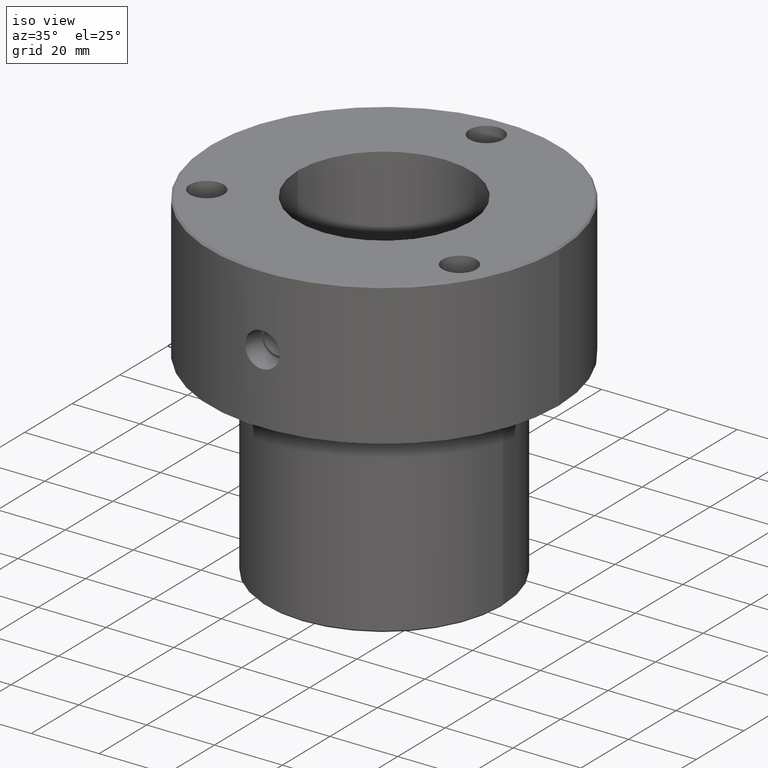
[diagram: clean part render]
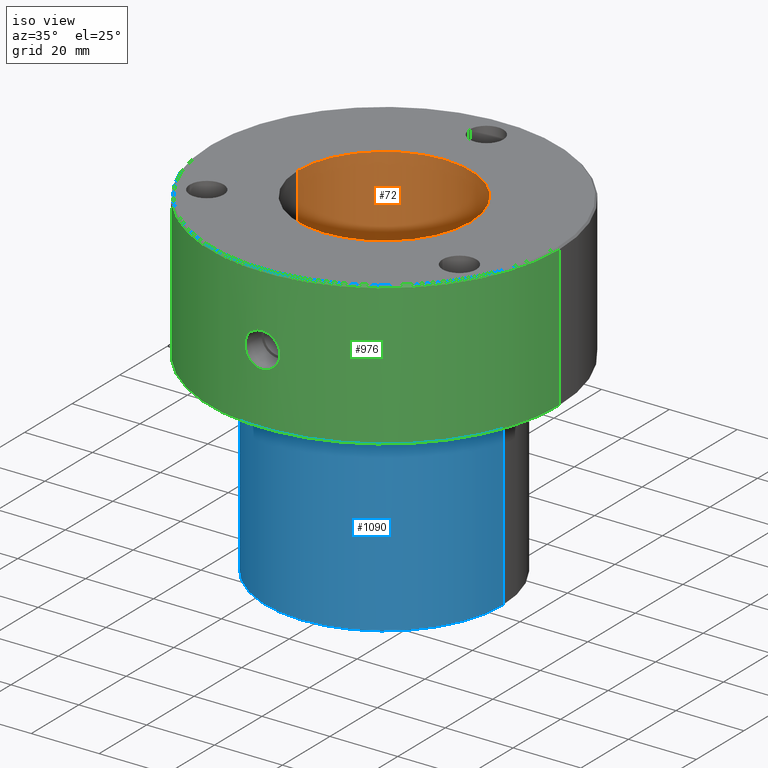
[diagram: same view with three faces highlighted in distinct colors, each labeled with its STEP entity id]
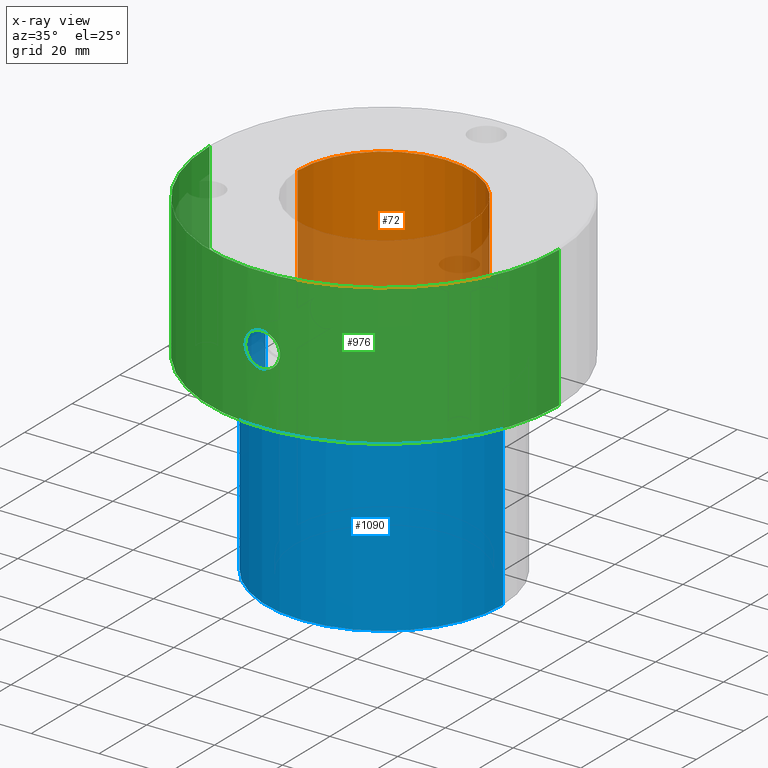
[diagram: x-ray of the same camera — body ghosted, the three highlighted faces saturated]
A machine part, iso view with three faces highlighted in distinct colors.
The next image is the same camera in x-ray (body ghosted, the three faces saturated) — at least one of them is partly hidden behind the body in this view.
Their STEP definitions:

[orange] entity #72 — the highlighted cylindrical surface (partial cylindrical patch) has radius 25.5 mm, axis along (-0, -0, -1).
#72 = ADVANCED_FACE ( 'NONE', ( #130 ), #139, .F. ) ;
#80 = CARTESIAN_POINT ( 'NONE',  ( 25.50000000000000000, 3.122849337825750222E-15, 0.000000000000000000 ) ) ;
#86 = EDGE_CURVE ( 'NONE', #406, #904, #1096, .T. ) ;
#89 = CARTESIAN_POINT ( 'NONE',  ( -25.50000000000000000, 0.000000000000000000, 0.000000000000000000 ) ) ;
#114 = VERTEX_POINT ( 'NONE', #1094 ) ;
#118 = CARTESIAN_POINT ( 'NONE',  ( -25.50000000000000000, 0.000000000000000000, 0.000000000000000000 ) ) ;
#130 = FACE_OUTER_BOUND ( 'NONE', #787, .T. ) ;
#139 = CYLINDRICAL_SURFACE ( 'NONE', #877, 25.50000000000000000 ) ;
#229 = DIRECTION ( 'NONE',  ( -0.000000000000000000, -0.000000000000000000, -1.000000000000000000 ) ) ;
#237 = DIRECTION ( 'NONE',  ( 0.000000000000000000, 0.000000000000000000, -1.000000000000000000 ) ) ;
#293 = DIRECTION ( 'NONE',  ( -0.000000000000000000, -0.000000000000000000, -1.000000000000000000 ) ) ;
#406 = VERTEX_POINT ( 'NONE', #118 ) ;
#448 = AXIS2_PLACEMENT_3D ( 'NONE', #705, #237, #1088 ) ;
#451 = VECTOR ( 'NONE', #293, 1000.000000000000000 ) ;
#490 = AXIS2_PLACEMENT_3D ( 'NONE', #1142, #844, #1031 ) ;
#517 = LINE ( 'NONE', #908, #655 ) ;
#518 = ORIENTED_EDGE ( 'NONE', *, *, #1138, .T. ) ;
#523 = DIRECTION ( 'NONE',  ( -0.000000000000000000, -0.000000000000000000, -1.000000000000000000 ) ) ;
#640 = ORIENTED_EDGE ( 'NONE', *, *, #967, .T. ) ;
#655 = VECTOR ( 'NONE', #523, 1000.000000000000000 ) ;
#659 = EDGE_CURVE ( 'NONE', #904, #689, #517, .T. ) ;
#689 = VERTEX_POINT ( 'NONE', #1029 ) ;
#705 = CARTESIAN_POINT ( 'NONE',  ( 0.000000000000000000, 0.000000000000000000, 0.000000000000000000 ) ) ;
#787 = EDGE_LOOP ( 'NONE', ( #821, #1050, #640, #518 ) ) ;
#821 = ORIENTED_EDGE ( 'NONE', *, *, #659, .F. ) ;
#844 = DIRECTION ( 'NONE',  ( 0.000000000000000000, 0.000000000000000000, -1.000000000000000000 ) ) ;
#877 = AXIS2_PLACEMENT_3D ( 'NONE', #891, #229, #1109 ) ;
#891 = CARTESIAN_POINT ( 'NONE',  ( 0.000000000000000000, 0.000000000000000000, 0.000000000000000000 ) ) ;
#904 = VERTEX_POINT ( 'NONE', #80 ) ;
#908 = CARTESIAN_POINT ( 'NONE',  ( 25.50000000000000000, 3.122849337825750222E-15, 0.000000000000000000 ) ) ;
#961 = CIRCLE ( 'NONE', #490, 25.50000000000000000 ) ;
#962 = LINE ( 'NONE', #89, #451 ) ;
#967 = EDGE_CURVE ( 'NONE', #406, #114, #962, .T. ) ;
#1029 = CARTESIAN_POINT ( 'NONE',  ( 25.50000000000000000, 3.122849337825750222E-15, -95.00000000000000000 ) ) ;
#1031 = DIRECTION ( 'NONE',  ( -1.000000000000000000, 0.000000000000000000, 0.000000000000000000 ) ) ;
#1050 = ORIENTED_EDGE ( 'NONE', *, *, #86, .F. ) ;
#1088 = DIRECTION ( 'NONE',  ( -1.000000000000000000, 0.000000000000000000, 0.000000000000000000 ) ) ;
#1094 = CARTESIAN_POINT ( 'NONE',  ( -25.50000000000000000, 0.000000000000000000, -95.00000000000000000 ) ) ;
#1096 = CIRCLE ( 'NONE', #448, 25.50000000000000000 ) ;
#1109 = DIRECTION ( 'NONE',  ( -1.000000000000000000, 0.000000000000000000, 0.000000000000000000 ) ) ;
#1138 = EDGE_CURVE ( 'NONE', #114, #689, #961, .T. ) ;
#1142 = CARTESIAN_POINT ( 'NONE',  ( 0.000000000000000000, 0.000000000000000000, -95.00000000000000000 ) ) ;

[blue] entity #1090 — the highlighted cylindrical surface (partial cylindrical patch) has radius 35 mm, axis along (-0, -0, 1).
#24 = DIRECTION ( 'NONE',  ( 1.000000000000000000, 0.000000000000000000, 0.000000000000000000 ) ) ;
#36 = CARTESIAN_POINT ( 'NONE',  ( -35.00000000000000000, 4.286263797015736496E-15, 0.000000000000000000 ) ) ;
#113 = EDGE_CURVE ( 'NONE', #1195, #377, #1137, .T. ) ;
#177 = VERTEX_POINT ( 'NONE', #986 ) ;
#180 = EDGE_CURVE ( 'NONE', #177, #1195, #895, .T. ) ;
#221 = AXIS2_PLACEMENT_3D ( 'NONE', #426, #1185, #24 ) ;
#223 = ORIENTED_EDGE ( 'NONE', *, *, #767, .T. ) ;
#377 = VERTEX_POINT ( 'NONE', #1084 ) ;
#403 = DIRECTION ( 'NONE',  ( -0.000000000000000000, -0.000000000000000000, 1.000000000000000000 ) ) ;
#426 = CARTESIAN_POINT ( 'NONE',  ( 0.000000000000000000, 0.000000000000000000, -42.00000000000000000 ) ) ;
#435 = CARTESIAN_POINT ( 'NONE',  ( 35.00000000000000000, 0.000000000000000000, -99.50000000000004263 ) ) ;
#443 = CARTESIAN_POINT ( 'NONE',  ( 0.000000000000000000, 0.000000000000000000, 0.000000000000000000 ) ) ;
#464 = AXIS2_PLACEMENT_3D ( 'NONE', #803, #403, #703 ) ;
#485 = VECTOR ( 'NONE', #804, 1000.000000000000000 ) ;
#548 = FACE_OUTER_BOUND ( 'NONE', #896, .T. ) ;
#584 = CARTESIAN_POINT ( 'NONE',  ( 35.00000000000000000, 0.000000000000000000, 0.000000000000000000 ) ) ;
#592 = CIRCLE ( 'NONE', #464, 35.00000000000000000 ) ;
#683 = VERTEX_POINT ( 'NONE', #435 ) ;
#703 = DIRECTION ( 'NONE',  ( -1.000000000000000000, 0.000000000000000000, 0.000000000000000000 ) ) ;
#747 = CARTESIAN_POINT ( 'NONE',  ( -35.00000000000000000, 4.286263797015736496E-15, -42.00000000000000000 ) ) ;
#767 = EDGE_CURVE ( 'NONE', #177, #683, #592, .T. ) ;
#773 = ORIENTED_EDGE ( 'NONE', *, *, #180, .F. ) ;
#779 = LINE ( 'NONE', #584, #1161 ) ;
#803 = CARTESIAN_POINT ( 'NONE',  ( 0.000000000000000000, 0.000000000000000000, -99.50000000000004263 ) ) ;
#804 = DIRECTION ( 'NONE',  ( -0.000000000000000000, -0.000000000000000000, 1.000000000000000000 ) ) ;
#837 = DIRECTION ( 'NONE',  ( -0.000000000000000000, -0.000000000000000000, 1.000000000000000000 ) ) ;
#846 = DIRECTION ( 'NONE',  ( 1.000000000000000000, 0.000000000000000000, 0.000000000000000000 ) ) ;
#867 = ORIENTED_EDGE ( 'NONE', *, *, #1230, .T. ) ;
#895 = LINE ( 'NONE', #36, #485 ) ;
#896 = EDGE_LOOP ( 'NONE', ( #773, #223, #867, #910 ) ) ;
#910 = ORIENTED_EDGE ( 'NONE', *, *, #113, .F. ) ;
#936 = CYLINDRICAL_SURFACE ( 'NONE', #947, 35.00000000000000000 ) ;
#947 = AXIS2_PLACEMENT_3D ( 'NONE', #443, #837, #846 ) ;
#986 = CARTESIAN_POINT ( 'NONE',  ( -35.00000000000000000, 4.286263797015736496E-15, -99.50000000000004263 ) ) ;
#1084 = CARTESIAN_POINT ( 'NONE',  ( 35.00000000000000000, 0.000000000000000000, -42.00000000000000000 ) ) ;
#1090 = ADVANCED_FACE ( 'NONE', ( #548 ), #936, .T. ) ;
#1137 = CIRCLE ( 'NONE', #221, 35.00000000000000000 ) ;
#1160 = DIRECTION ( 'NONE',  ( -0.000000000000000000, -0.000000000000000000, 1.000000000000000000 ) ) ;
#1161 = VECTOR ( 'NONE', #1160, 1000.000000000000000 ) ;
#1185 = DIRECTION ( 'NONE',  ( -0.000000000000000000, -0.000000000000000000, 1.000000000000000000 ) ) ;
#1195 = VERTEX_POINT ( 'NONE', #747 ) ;
#1230 = EDGE_CURVE ( 'NONE', #683, #377, #779, .T. ) ;

[green] entity #976 — the highlighted cylindrical surface (partial cylindrical patch) has radius 51.5 mm, axis along (-0, -0, 1).
#12 = VECTOR ( 'NONE', #658, 1000.000000000000000 ) ;
#17 = CARTESIAN_POINT ( 'NONE',  ( 4.457634637478083306, -51.30705923410508262, -23.82621273787369631 ) ) ;
#20 = CARTESIAN_POINT ( 'NONE',  ( 51.50000000000000000, 0.000000000000000000, -0.5000000000000004441 ) ) ;
#23 = CARTESIAN_POINT ( 'NONE',  ( 51.50000000000000000, 0.000000000000000000, -42.00000000000000000 ) ) ;
#45 = CARTESIAN_POINT ( 'NONE',  ( 2.716055077494536008, -51.42852049064780573, -25.61849436601665531 ) ) ;
#50 = CARTESIAN_POINT ( 'NONE',  ( -4.970545045048587518, -51.25961420767220744, -19.91315521511948816 ) ) ;
#51 = CARTESIAN_POINT ( 'NONE',  ( 2.121122820814869137, -51.45653307363946993, -25.93719350975683113 ) ) ;
#55 = CARTESIAN_POINT ( 'NONE',  ( -5.103538412688853221, -51.24654388850566988, -21.91707525582282656 ) ) ;
#59 = EDGE_CURVE ( 'NONE', #1106, #300, #383, .T. ) ;
#65 = CARTESIAN_POINT ( 'NONE',  ( -2.572853543023277734, -51.43590637866683579, -16.79541911679499222 ) ) ;
#69 = B_SPLINE_CURVE_WITH_KNOTS ( 'NONE', 3,
 ( #331, #133, #792, #1173, #440, #51, #241, #818, #45, #298, #519, #1111, #1070, #17, #1213, #397, #1010, #342, #1169, #430, #1200, #629, #1098, #1018, #827, #200, #1208, #1117, #146, #591, #137, #537, #932, #831, #788, #228, #617, #726, #983, #739 ),
 .UNSPECIFIED., .F., .F.,
 ( 4, 2, 2, 2, 2, 2, 2, 2, 2, 2, 2, 2, 2, 2, 2, 2, 2, 2, 2, 4 ),
 ( 0.004107745889543262287, 0.005112902197702762913, 0.006118058505862263539, 0.006620636659942015154, 0.007123214814021767635, 0.008128371122181272598, 0.009133527430340777561, 0.01013868373850028252, 0.01064126189258003501, 0.01114384004665978575, 0.01214899635481930112, 0.01315415266297881650, 0.01415930897113833187, 0.01516446527929784724, 0.01616962158745736261, 0.01717477789561687798, 0.01817993420377638988, 0.01868251235785614930, 0.01918509051193590526, 0.02019024682009542063 ),
 .UNSPECIFIED. ) ;
#73 = DIRECTION ( 'NONE',  ( 0.000000000000000000, 0.000000000000000000, -1.000000000000000000 ) ) ;
#74 = DIRECTION ( 'NONE',  ( 1.000000000000000000, 0.000000000000000000, 0.000000000000000000 ) ) ;
#101 = CYLINDRICAL_SURFACE ( 'NONE', #1122, 51.50000000000000000 ) ;
#121 = CARTESIAN_POINT ( 'NONE',  ( -51.50000000000000000, 6.306931015608868807E-15, -42.00000000000000000 ) ) ;
#133 = CARTESIAN_POINT ( 'NONE',  ( 0.3353013208440320803, -51.50000000000000000, -26.39337300000000042 ) ) ;
#136 = CARTESIAN_POINT ( 'NONE',  ( -4.873419098527694615, -51.26905909255087579, -19.59290484552858302 ) ) ;
#137 = CARTESIAN_POINT ( 'NONE',  ( 3.136185333612287351, -51.40519293067121254, -17.16291568919610100 ) ) ;
#145 = CARTESIAN_POINT ( 'NONE',  ( -5.135571099062696376, -51.24330111829166157, -20.91314367667845531 ) ) ;
#146 = CARTESIAN_POINT ( 'NONE',  ( 3.868090047908823159, -51.35507909105496793, -17.85004502327221942 ) ) ;
#150 = CARTESIAN_POINT ( 'NONE',  ( -4.618922364095463529, -51.29261140151269416, -23.52332559415824065 ) ) ;
#154 = CARTESIAN_POINT ( 'NONE',  ( -1.334511350930534856, -51.48375855101124898, -16.27195165724317860 ) ) ;
#158 = CARTESIAN_POINT ( 'NONE',  ( -0.6764116674713784860, -51.49660942567671640, -16.14037076350564703 ) ) ;
#171 = VERTEX_POINT ( 'NONE', #121 ) ;
#200 = CARTESIAN_POINT ( 'NONE',  ( 4.615444507740382285, -51.29292706423705539, -18.96935145740248529 ) ) ;
#222 = CARTESIAN_POINT ( 'NONE',  ( -0.6752129084959268557, -51.49663065334000578, -26.35984570715628550 ) ) ;
#228 = CARTESIAN_POINT ( 'NONE',  ( 1.331544956519863598, -51.48303611421331993, -16.27964254438147762 ) ) ;
#231 = VERTEX_POINT ( 'NONE', #351 ) ;
#240 = CARTESIAN_POINT ( 'NONE',  ( -3.394174496679403408, -51.38858751863610053, -17.37521538122372178 ) ) ;
#241 = CARTESIAN_POINT ( 'NONE',  ( 2.272775390774277149, -51.45004000926935106, -25.86538700450402928 ) ) ;
#250 = CARTESIAN_POINT ( 'NONE',  ( -3.870388291433632499, -51.35491700579432006, -24.64766394908491520 ) ) ;
#252 = ORIENTED_EDGE ( 'NONE', *, *, #920, .T. ) ;
#261 = LINE ( 'NONE', #1060, #12 ) ;
#280 = EDGE_LOOP ( 'NONE', ( #599, #333, #252, #688 ) ) ;
#298 = CARTESIAN_POINT ( 'NONE',  ( 3.136210703289033397, -51.40518342140642005, -25.33692630218639508 ) ) ;
#300 = VERTEX_POINT ( 'NONE', #707 ) ;
#325 = CARTESIAN_POINT ( 'NONE',  ( -1.335029987352562175, -51.48375060202188536, -26.22796783234396045 ) ) ;
#331 = CARTESIAN_POINT ( 'NONE',  ( 1.048222593639576067E-21, -51.50000000000000000, -26.39337300000000042 ) ) ;
#333 = ORIENTED_EDGE ( 'NONE', *, *, #856, .T. ) ;
#335 = CARTESIAN_POINT ( 'NONE',  ( -3.392389233153937589, -51.38870597212261515, -25.12635399936055691 ) ) ;
#337 = CARTESIAN_POINT ( 'NONE',  ( -4.455594510083999538, -51.30723595572462870, -18.67032462210925203 ) ) ;
#342 = CARTESIAN_POINT ( 'NONE',  ( 4.963928581033117737, -51.26023617090775986, -22.57976408175084515 ) ) ;
#351 = CARTESIAN_POINT ( 'NONE',  ( -51.50000000000000000, 6.306931015608868807E-15, -0.5000000000000004441 ) ) ;
#364 = AXIS2_PLACEMENT_3D ( 'NONE', #369, #73, #557 ) ;
#369 = CARTESIAN_POINT ( 'NONE',  ( 0.000000000000000000, 0.000000000000000000, -0.5000000000000004441 ) ) ;
#383 = B_SPLINE_CURVE_WITH_KNOTS ( 'NONE', 3,
 ( #826, #1126, #158, #154, #1207, #836, #941, #65, #1227, #921, #240, #1017, #1026, #337, #748, #136, #50, #731, #145, #536, #55, #1212, #439, #150, #935, #746, #250, #335, #1103, #729, #1014, #709, #325, #222, #815, #1205 ),
 .UNSPECIFIED., .F., .F.,
 ( 4, 2, 2, 2, 2, 2, 2, 2, 2, 2, 2, 2, 2, 2, 2, 2, 2, 4 ),
 ( 0.02019024682009542063, 0.02119471988690419320, 0.02219919295371296925, 0.02270142948711735553, 0.02320366602052174529, 0.02420813908733053174, 0.02521261215413931472, 0.02621708522094810118, 0.02722155828775688763, 0.02822603135456567408, 0.02923050442137446053, 0.03023497748818324699, 0.03123945055499203344, 0.03224392362180081989, 0.03324839668860960634, 0.03425286975541839279, 0.03525734282222717925, 0.03626181588903596570 ),
 .UNSPECIFIED. ) ;
#397 = CARTESIAN_POINT ( 'NONE',  ( 4.809111397820574396, -51.27500999554197136, -23.06273107317452187 ) ) ;
#430 = CARTESIAN_POINT ( 'NONE',  ( 5.102355235093170904, -51.24666100736852314, -21.92415948591494868 ) ) ;
#436 = CIRCLE ( 'NONE', #364, 51.50000000000000000 ) ;
#439 = CARTESIAN_POINT ( 'NONE',  ( -4.874176289879716961, -51.26898510490826055, -22.90456670123846195 ) ) ;
#440 = CARTESIAN_POINT ( 'NONE',  ( 1.657110490166086914, -51.47426363476713362, -26.12980794330655954 ) ) ;
#473 = CARTESIAN_POINT ( 'NONE',  ( 0.000000000000000000, 0.000000000000000000, -42.00000000000000000 ) ) ;
#519 = CARTESIAN_POINT ( 'NONE',  ( 3.394642827361414206, -51.38854838561958616, -25.12414554227154539 ) ) ;
#532 = VERTEX_POINT ( 'NONE', #20 ) ;
#536 = CARTESIAN_POINT ( 'NONE',  ( -5.135801780001337136, -51.24327799907001690, -21.58331015971613454 ) ) ;
#537 = CARTESIAN_POINT ( 'NONE',  ( 2.573071245024807219, -51.43645422318999039, -16.78582650585409297 ) ) ;
#557 = DIRECTION ( 'NONE',  ( 1.000000000000000000, 0.000000000000000000, 0.000000000000000000 ) ) ;
#585 = FACE_BOUND ( 'NONE', #777, .T. ) ;
#591 = CARTESIAN_POINT ( 'NONE',  ( 3.394848946332763351, -51.38853247271054414, -17.37609873495068413 ) ) ;
#599 = ORIENTED_EDGE ( 'NONE', *, *, #636, .F. ) ;
#617 = CARTESIAN_POINT ( 'NONE',  ( 1.166101079403363050, -51.48706274633448032, -16.23811354126406670 ) ) ;
#629 = CARTESIAN_POINT ( 'NONE',  ( 5.135613818990137247, -51.24329683683077263, -20.90997058817930210 ) ) ;
#636 = EDGE_CURVE ( 'NONE', #171, #231, #1191, .T. ) ;
#638 = DIRECTION ( 'NONE',  ( 1.000000000000000000, 0.000000000000000000, 0.000000000000000000 ) ) ;
#658 = DIRECTION ( 'NONE',  ( -0.000000000000000000, -0.000000000000000000, 1.000000000000000000 ) ) ;
#688 = ORIENTED_EDGE ( 'NONE', *, *, #1162, .T. ) ;
#696 = ORIENTED_EDGE ( 'NONE', *, *, #1016, .F. ) ;
#707 = CARTESIAN_POINT ( 'NONE',  ( 1.048222593639576067E-21, -51.50000000000000000, -26.39337300000000042 ) ) ;
#709 = CARTESIAN_POINT ( 'NONE',  ( -1.655189781649638592, -51.47433215661397554, -26.13054333015325170 ) ) ;
#726 = CARTESIAN_POINT ( 'NONE',  ( 0.6694074120081875412, -51.49671427971136950, -16.13930995566505899 ) ) ;
#729 = CARTESIAN_POINT ( 'NONE',  ( -2.577214110619729048, -51.43622827599907055, -25.71146961298348899 ) ) ;
#731 = CARTESIAN_POINT ( 'NONE',  ( -5.102074559861904390, -51.24668966821032967, -20.57299764770509398 ) ) ;
#732 = CARTESIAN_POINT ( 'NONE',  ( 0.000000000000000000, 0.000000000000000000, 0.000000000000000000 ) ) ;
#739 = CARTESIAN_POINT ( 'NONE',  ( 6.298815310959837949E-16, -51.50000000000000000, -16.10662700000000314 ) ) ;
#746 = CARTESIAN_POINT ( 'NONE',  ( -4.084952459583112372, -51.33808047330343527, -24.38557191876200392 ) ) ;
#748 = CARTESIAN_POINT ( 'NONE',  ( -4.616570975055003245, -51.29282509647570976, -18.97167582135471875 ) ) ;
#763 = VERTEX_POINT ( 'NONE', #23 ) ;
#766 = DIRECTION ( 'NONE',  ( -0.000000000000000000, -0.000000000000000000, 1.000000000000000000 ) ) ;
#777 = EDGE_LOOP ( 'NONE', ( #696, #992 ) ) ;
#788 = CARTESIAN_POINT ( 'NONE',  ( 1.654020674870432028, -51.47368487990468111, -16.37775195547085971 ) ) ;
#792 = CARTESIAN_POINT ( 'NONE',  ( 0.6693026806619063462, -51.49672549019852141, -26.36080848415118894 ) ) ;
#796 = CARTESIAN_POINT ( 'NONE',  ( -51.50000000000000000, 6.306931015608868807E-15, 0.000000000000000000 ) ) ;
#799 = AXIS2_PLACEMENT_3D ( 'NONE', #473, #766, #74 ) ;
#815 = CARTESIAN_POINT ( 'NONE',  ( -0.3350734043244900651, -51.50000000000000000, -26.39337299999999331 ) ) ;
#818 = CARTESIAN_POINT ( 'NONE',  ( 2.569935440570200846, -51.43605308306254642, -25.70627989238121103 ) ) ;
#826 = CARTESIAN_POINT ( 'NONE',  ( 6.298815310959837949E-16, -51.50000000000000000, -16.10662700000000314 ) ) ;
#827 = CARTESIAN_POINT ( 'NONE',  ( 4.872762613667714682, -51.26912208466235654, -19.59091961400270065 ) ) ;
#831 = CARTESIAN_POINT ( 'NONE',  ( 1.811917442048592397, -51.46834851635972541, -16.43444993656066089 ) ) ;
#836 = CARTESIAN_POINT ( 'NONE',  ( -2.122390397132325468, -51.45648428634891758, -16.56333713622720438 ) ) ;
#856 = EDGE_CURVE ( 'NONE', #171, #763, #1203, .T. ) ;
#915 = DIRECTION ( 'NONE',  ( -0.000000000000000000, -0.000000000000000000, 1.000000000000000000 ) ) ;
#920 = EDGE_CURVE ( 'NONE', #763, #532, #261, .T. ) ;
#921 = CARTESIAN_POINT ( 'NONE',  ( -3.133331818491418730, -51.40534713884964191, -17.16107801846559511 ) ) ;
#932 = CARTESIAN_POINT ( 'NONE',  ( 2.275792585293514136, -51.45062238089825257, -16.62701780103406080 ) ) ;
#935 = CARTESIAN_POINT ( 'NONE',  ( -4.459652610896620573, -51.30688883444945958, -23.82304282523870143 ) ) ;
#941 = CARTESIAN_POINT ( 'NONE',  ( -2.276262927525767310, -51.44988500894436356, -16.63634664762538407 ) ) ;
#976 = ADVANCED_FACE ( 'NONE', ( #1066, #585 ), #101, .T. ) ;
#983 = CARTESIAN_POINT ( 'NONE',  ( 0.3358835663762500534, -51.50000000000001421, -16.10662700000000314 ) ) ;
#992 = ORIENTED_EDGE ( 'NONE', *, *, #59, .F. ) ;
#1010 = CARTESIAN_POINT ( 'NONE',  ( 4.866411394179904981, -51.26958591014203392, -22.90220319035053365 ) ) ;
#1014 = CARTESIAN_POINT ( 'NONE',  ( -2.276103841329510047, -51.45061589025135618, -25.87292166544103367 ) ) ;
#1016 = EDGE_CURVE ( 'NONE', #300, #1106, #69, .T. ) ;
#1017 = CARTESIAN_POINT ( 'NONE',  ( -3.871928745888957746, -51.35480031565879955, -17.85409872166449219 ) ) ;
#1018 = CARTESIAN_POINT ( 'NONE',  ( 4.971852313927572986, -51.25948680529477741, -19.91831370292505454 ) ) ;
#1023 = VECTOR ( 'NONE', #1089, 1000.000000000000000 ) ;
#1026 = CARTESIAN_POINT ( 'NONE',  ( -4.083870080060343355, -51.33816113792820346, -18.11335087147658740 ) ) ;
#1040 = CARTESIAN_POINT ( 'NONE',  ( 6.298815310959837949E-16, -51.50000000000000000, -16.10662700000000314 ) ) ;
#1060 = CARTESIAN_POINT ( 'NONE',  ( 51.50000000000000000, 0.000000000000000000, 0.000000000000000000 ) ) ;
#1066 = FACE_OUTER_BOUND ( 'NONE', #280, .T. ) ;
#1070 = CARTESIAN_POINT ( 'NONE',  ( 4.085644507848206430, -51.33802044068998782, -24.38439208705906225 ) ) ;
#1089 = DIRECTION ( 'NONE',  ( -0.000000000000000000, -0.000000000000000000, 1.000000000000000000 ) ) ;
#1098 = CARTESIAN_POINT ( 'NONE',  ( 5.102417383276221408, -51.24665491347251844, -20.57613492145341283 ) ) ;
#1103 = CARTESIAN_POINT ( 'NONE',  ( -3.133535059618951291, -51.40533600573779438, -25.33878848935032124 ) ) ;
#1106 = VERTEX_POINT ( 'NONE', #1040 ) ;
#1111 = CARTESIAN_POINT ( 'NONE',  ( 3.868875284666686731, -51.35502223870823713, -24.64913067251421097 ) ) ;
#1117 = CARTESIAN_POINT ( 'NONE',  ( 4.084600155122266152, -51.33810581497413494, -18.11413077232103319 ) ) ;
#1122 = AXIS2_PLACEMENT_3D ( 'NONE', #732, #915, #638 ) ;
#1126 = CARTESIAN_POINT ( 'NONE',  ( -0.3356552540832114517, -51.50000000000000000, -16.10662700000000669 ) ) ;
#1162 = EDGE_CURVE ( 'NONE', #532, #231, #436, .T. ) ;
#1169 = CARTESIAN_POINT ( 'NONE',  ( 5.004541009587042844, -51.25627417810104447, -22.41700138948911913 ) ) ;
#1173 = CARTESIAN_POINT ( 'NONE',  ( 1.334615805379071318, -51.48377902741052736, -26.22826705002438175 ) ) ;
#1191 = LINE ( 'NONE', #796, #1023 ) ;
#1200 = CARTESIAN_POINT ( 'NONE',  ( 5.135759432686824333, -51.24328224318696101, -21.58781631127578393 ) ) ;
#1203 = CIRCLE ( 'NONE', #799, 51.50000000000000000 ) ;
#1205 = CARTESIAN_POINT ( 'NONE',  ( 1.048222593639576067E-21, -51.50000000000000000, -26.39337300000000042 ) ) ;
#1207 = CARTESIAN_POINT ( 'NONE',  ( -1.654922887784929353, -51.47434792857442432, -16.36927503999904232 ) ) ;
#1208 = CARTESIAN_POINT ( 'NONE',  ( 4.457834078572474823, -51.30704417937777606, -18.67399679769003029 ) ) ;
#1212 = CARTESIAN_POINT ( 'NONE',  ( -4.972038158280625453, -51.25946938272897313, -22.58188047283348254 ) ) ;
#1213 = CARTESIAN_POINT ( 'NONE',  ( 4.615458871489047432, -51.29292689371413161, -23.53081845748871359 ) ) ;
#1227 = CARTESIAN_POINT ( 'NONE',  ( -2.716438236506895976, -51.42849729473772413, -16.88179572973227494 ) ) ;